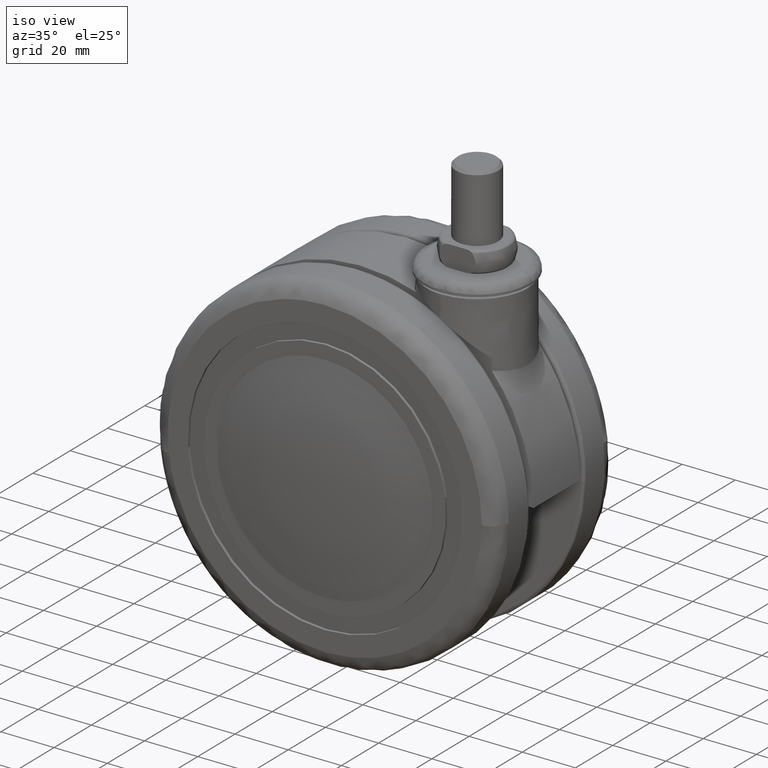
[diagram: clean part render]
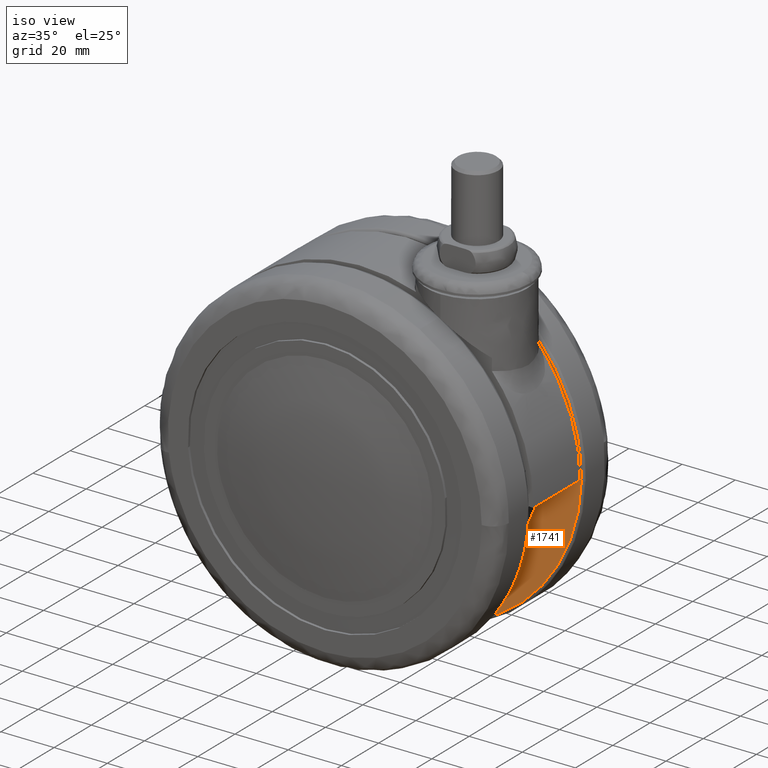
[diagram: same view with one face highlighted and labeled with its STEP entity id]
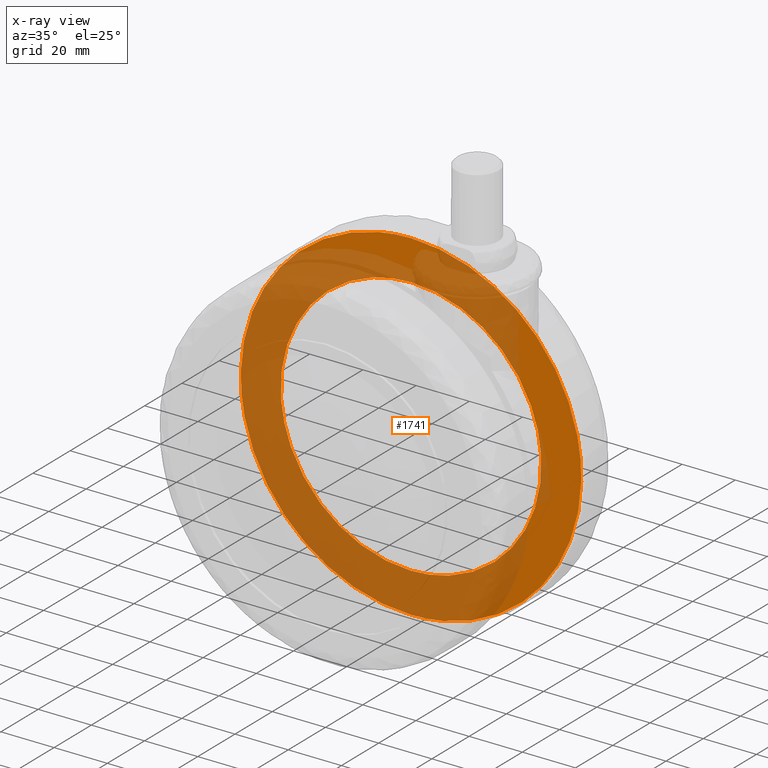
[diagram: x-ray of the same camera — body ghosted, the highlighted face saturated]
A machine part, iso view. The second image highlights one B-rep face of the part: STEP entity #1741.
The next image is the same camera in x-ray: the body ghosted, the highlighted face saturated — about 71% of this face is hidden behind the body in this view.
In plain terms, the highlighted face is a freeform B-spline surface patch.
Its self-contained STEP definition (entity closure, byte-faithful):
#811=CARTESIAN_POINT('',(48.848950059473438,14.500000000000000,3.844486713072145));
#812=VERTEX_POINT('',#811);
#818=CARTESIAN_POINT('',(0.0,14.500000000000000,49.000000000000028));
#819=VERTEX_POINT('',#818);
#820=CARTESIAN_POINT('',(0.0,14.500000000000000,49.000000000000028));
#821=CARTESIAN_POINT('',(45.295142441456107,14.500000000000009,49.000000000000028));
#822=CARTESIAN_POINT('',(48.848950059473438,14.500000000000002,3.844486713072145));
#830=(BOUNDED_CURVE()B_SPLINE_CURVE(2,(#820,#821,#822),.UNSPECIFIED.,.F.,.U.)B_SPLINE_CURVE_WITH_KNOTS((3,3),(0.0,0.236331332137625),.UNSPECIFIED.)CURVE()GEOMETRIC_REPRESENTATION_ITEM()RATIONAL_B_SPLINE_CURVE((1.0,0.723120621694960,0.969723421920060))REPRESENTATION_ITEM(''));
#831=EDGE_CURVE('',#819,#812,#830,.T.);
#833=CARTESIAN_POINT('',(-48.848950059473438,14.500000000000000,-3.844486713072168));
#834=VERTEX_POINT('',#833);
#835=CARTESIAN_POINT('',(-48.848950059473438,14.500000000000000,-3.844486713072168));
#836=CARTESIAN_POINT('',(-48.999999999999993,14.500000000000000,-1.925210733748677));
#837=CARTESIAN_POINT('',(-49.0,14.500000000000000,2.625985E-014));
#838=CARTESIAN_POINT('',(-48.999999999999986,14.500000000000004,49.000000000000036));
#839=CARTESIAN_POINT('',(0.0,14.500000000000000,49.000000000000028));
#847=(BOUNDED_CURVE()B_SPLINE_CURVE(2,(#835,#836,#837,#838,#839),.UNSPECIFIED.,.F.,.U.)B_SPLINE_CURVE_WITH_KNOTS((3,2,3),(0.736331332137625,0.750000000000000,1.0),.UNSPECIFIED.)CURVE()GEOMETRIC_REPRESENTATION_ITEM()RATIONAL_B_SPLINE_CURVE((0.969723421920059,0.983986159491588,1.0,0.707106781186547,1.0))REPRESENTATION_ITEM(''));
#848=EDGE_CURVE('',#834,#819,#847,.T.);
#924=CARTESIAN_POINT('',(0.0,14.500000000000000,-48.999999999999972));
#925=VERTEX_POINT('',#924);
#926=CARTESIAN_POINT('',(0.0,14.500000000000000,-48.999999999999972));
#927=CARTESIAN_POINT('',(-45.295142441456029,14.500000000000002,-48.999999999999964));
#928=CARTESIAN_POINT('',(-48.848950059473438,14.500000000000000,-3.844486713072168));
#936=(BOUNDED_CURVE()B_SPLINE_CURVE(2,(#926,#927,#928),.UNSPECIFIED.,.F.,.U.)B_SPLINE_CURVE_WITH_KNOTS((3,3),(0.500000000000000,0.736331332137625),.UNSPECIFIED.)CURVE()GEOMETRIC_REPRESENTATION_ITEM()RATIONAL_B_SPLINE_CURVE((1.0,0.723120621694960,0.969723421920059))REPRESENTATION_ITEM(''));
#937=EDGE_CURVE('',#925,#834,#936,.T.);
#939=CARTESIAN_POINT('',(48.848950059473438,14.500000000000002,3.844486713072145));
#940=CARTESIAN_POINT('',(49.000000000000007,14.499999999999996,1.925210733748691));
#941=CARTESIAN_POINT('',(49.0,14.500000000000000,2.625985E-014));
#942=CARTESIAN_POINT('',(48.999999999999986,14.500000000000004,-48.999999999999964));
#943=CARTESIAN_POINT('',(0.0,14.500000000000000,-48.999999999999972));
#951=(BOUNDED_CURVE()B_SPLINE_CURVE(2,(#939,#940,#941,#942,#943),.UNSPECIFIED.,.F.,.U.)B_SPLINE_CURVE_WITH_KNOTS((3,2,3),(0.236331332137625,0.250000000000000,0.500000000000000),.UNSPECIFIED.)CURVE()GEOMETRIC_REPRESENTATION_ITEM()RATIONAL_B_SPLINE_CURVE((0.969723421920060,0.983986159491588,1.0,0.707106781186547,1.0))REPRESENTATION_ITEM(''));
#952=EDGE_CURVE('',#812,#925,#951,.T.);
#1407=CARTESIAN_POINT('',(0.0,14.500000000000000,-63.999999999999972));
#1408=VERTEX_POINT('',#1407);
#1409=CARTESIAN_POINT('',(-63.979788318711407,14.500000000000041,1.608326112856311));
#1410=VERTEX_POINT('',#1409);
#1411=CARTESIAN_POINT('',(0.0,14.500000000000000,-63.999999999999972));
#1412=CARTESIAN_POINT('',(-64.000000000000014,14.500000000000000,-63.999999999999972));
#1413=CARTESIAN_POINT('',(-64.0,14.500000000000000,2.625985E-014));
#1414=CARTESIAN_POINT('',(-64.0,14.500000000000004,0.804290055236504));
#1415=CARTESIAN_POINT('',(-63.979788318711414,14.500000000000041,1.608326112856311));
#1423=(BOUNDED_CURVE()B_SPLINE_CURVE(2,(#1411,#1412,#1413,#1414,#1415),.UNSPECIFIED.,.F.,.U.)B_SPLINE_CURVE_WITH_KNOTS((3,2,3),(0.500000000000000,0.750000000000000,0.754420108226585),.UNSPECIFIED.)CURVE()GEOMETRIC_REPRESENTATION_ITEM()RATIONAL_B_SPLINE_CURVE((1.0,0.707106781186548,1.0,0.994821521096047,0.989826157689730))REPRESENTATION_ITEM(''));
#1424=EDGE_CURVE('',#1408,#1410,#1423,.T.);
#1443=CARTESIAN_POINT('',(63.979788114221840,14.500000000000000,-1.608326108375847));
#1444=VERTEX_POINT('',#1443);
#1458=CARTESIAN_POINT('',(63.979788114221840,14.500000000000004,-1.608326108375847));
#1459=CARTESIAN_POINT('',(62.411384075561550,14.500000000000009,-63.999999999999979));
#1460=CARTESIAN_POINT('',(0.0,14.500000000000000,-63.999999999999972));
#1468=(BOUNDED_CURVE()B_SPLINE_CURVE(2,(#1458,#1459,#1460),.UNSPECIFIED.,.F.,.U.)B_SPLINE_CURVE_WITH_KNOTS((3,3),(0.254420108230193,0.500000000000000),.UNSPECIFIED.)CURVE()GEOMETRIC_REPRESENTATION_ITEM()RATIONAL_B_SPLINE_CURVE((0.989826157681576,0.712285260094727,1.0))REPRESENTATION_ITEM(''));
#1469=EDGE_CURVE('',#1444,#1408,#1468,.T.);
#1497=CARTESIAN_POINT('',(0.0,14.500000000000000,64.000000000000028));
#1498=VERTEX_POINT('',#1497);
#1499=CARTESIAN_POINT('',(-63.979788318711414,14.500000000000043,1.608326112856311));
#1500=CARTESIAN_POINT('',(-62.411384076848897,14.500000000000000,64.000000000000028));
#1501=CARTESIAN_POINT('',(0.0,14.500000000000000,64.000000000000028));
#1509=(BOUNDED_CURVE()B_SPLINE_CURVE(2,(#1499,#1500,#1501),.UNSPECIFIED.,.F.,.U.)B_SPLINE_CURVE_WITH_KNOTS((3,3),(0.754420108226584,1.0),.UNSPECIFIED.)CURVE()GEOMETRIC_REPRESENTATION_ITEM()RATIONAL_B_SPLINE_CURVE((0.989826157689732,0.712285260090500,1.0))REPRESENTATION_ITEM(''));
#1510=EDGE_CURVE('',#1410,#1498,#1509,.T.);
#1512=CARTESIAN_POINT('',(0.0,14.500000000000000,64.000000000000028));
#1513=CARTESIAN_POINT('',(64.000000000000014,14.500000000000000,64.000000000000043));
#1514=CARTESIAN_POINT('',(64.0,14.500000000000000,2.625985E-014));
#1515=CARTESIAN_POINT('',(63.999999999999993,14.500000000000004,-0.804290055896245));
#1516=CARTESIAN_POINT('',(63.979788114221840,14.500000000000002,-1.608326108375848));
#1524=(BOUNDED_CURVE()B_SPLINE_CURVE(2,(#1512,#1513,#1514,#1515,#1516),.UNSPECIFIED.,.F.,.U.)B_SPLINE_CURVE_WITH_KNOTS((3,2,3),(0.0,0.250000000000000,0.254420108230192),.UNSPECIFIED.)CURVE()GEOMETRIC_REPRESENTATION_ITEM()RATIONAL_B_SPLINE_CURVE((1.0,0.707106781186548,1.0,0.994821521091821,0.989826157681576))REPRESENTATION_ITEM(''));
#1525=EDGE_CURVE('',#1498,#1444,#1524,.T.);
#1724=CARTESIAN_POINT('',(70.371371111422249,14.500000000000000,70.393599751911196));
#1725=CARTESIAN_POINT('',(70.371371111422249,14.500000000000000,-70.393603185138673));
#1726=CARTESIAN_POINT('',(-70.371372459959616,14.500000000000000,70.393599751911196));
#1727=CARTESIAN_POINT('',(-70.371372459959616,14.500000000000000,-70.393603185138673));
#1728=B_SPLINE_SURFACE_WITH_KNOTS('',1,1,((#1724,#1726),(#1725,#1727)),.UNSPECIFIED.,.F.,.F.,.U.,(2,2),(2,2),(0.0,140.787202937049900),(0.0,140.742743571381910),.UNSPECIFIED.);
#1729=ORIENTED_EDGE('',*,*,#1510,.F.);
#1730=ORIENTED_EDGE('',*,*,#1424,.F.);
#1731=ORIENTED_EDGE('',*,*,#1469,.F.);
#1732=ORIENTED_EDGE('',*,*,#1525,.F.);
#1733=EDGE_LOOP('',(#1729,#1730,#1731,#1732));
#1734=FACE_OUTER_BOUND('',#1733,.T.);
#1735=ORIENTED_EDGE('',*,*,#937,.T.);
#1736=ORIENTED_EDGE('',*,*,#848,.T.);
#1737=ORIENTED_EDGE('',*,*,#831,.T.);
#1738=ORIENTED_EDGE('',*,*,#952,.T.);
#1739=EDGE_LOOP('',(#1735,#1736,#1737,#1738));
#1740=FACE_BOUND('',#1739,.T.);
#1741=ADVANCED_FACE('',(#1734,#1740),#1728,.F.);